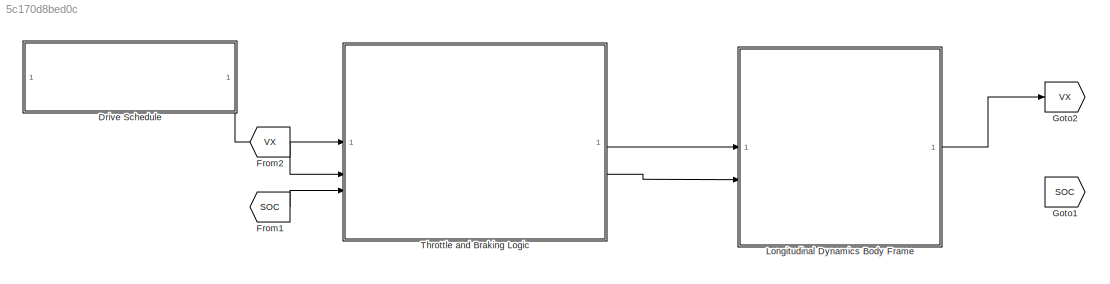
MODEL slx_5c170d8bed0c
KIND model
CONFIG AbsTol = auto
CONFIG EnableMultiTasking = off
CONFIG FixedStep = 0.001
CONFIG MaxStep = auto
CONFIG MinStep = auto
CONFIG RelTol = 1e-3
CONFIG SampleTimeConstraint = Unconstrained
CONFIG SolverName = ode5
CONFIG StartTime = 0.0
CONFIG StopTime = 765
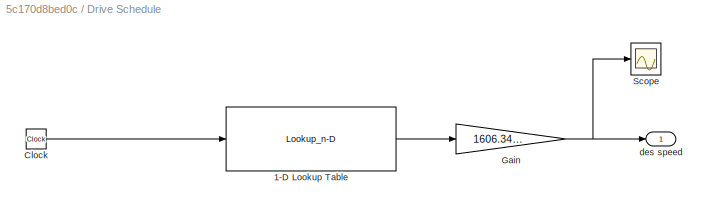
BLOCK [SubSystem] Drive Schedule
BLOCK [Lookup_n-D] Drive Schedule/1-D Lookup Table
  BreakpointsForDimension1 = Time
  InputPortMap = u0
  InternalRulePriority = Speed
  NumberOfTableDimensions = 1
  RndMeth = Simplest
  Table = DriveData
BLOCK [Clock] Drive Schedule/Clock
BLOCK [Gain] Drive Schedule/Gain
  Gain = 1606.344/3600
BLOCK [Scope] Drive Schedule/Scope
  ActiveDisplayYMaximum = 28.35
  ActiveDisplayYMinimum = -3.15
  DataLoggingVariableName = ScopeData4
  Floating = off
  GraphicalSettings = {"GraphicalSettings":{"LegacySettings":true,"Style":{"Style":{"AxesColor":"[0 0 0]","ChannelNames":[""],"ColorOrder":"[1 0.909803921568627 0.392156862745098;0.149019607843137 0.549019607843137 0.866666666666667;0.96078431372549 0.466666666666667 0.16078431372549;0.286274509803922 0.858823529411765 0.250980392156863;0.752941176470588 0.36078431372549 0.984313725490196;0.423529411764706 0.9568627450...<+432ch>
  MultipleDisplayCache = [{"MaxYLimMag":28.35,"MaxYLimReal":28.35,"MinYLimMag":0,"MinYLimReal":-3.15,"PlotAsMagnitudePhase":false,"ShowGrid":true,"ShowLegend":false,"Title":"%<SignalLabel>","YLabel":""}]
  NumInputPorts = 1
  WasSavedAsWebScope = on
  WindowPosition = [308 467 560 420]
BLOCK [Outport] Drive Schedule/des speed 
  VectorParamsAs1DForOutWhenUnconnected = off
BLOCK [From] From1
  GotoTag = SOC
BLOCK [From] From2
  GotoTag = VX
BLOCK [Goto] Goto1
  GotoTag = SOC
BLOCK [Goto] Goto2
  GotoTag = VX
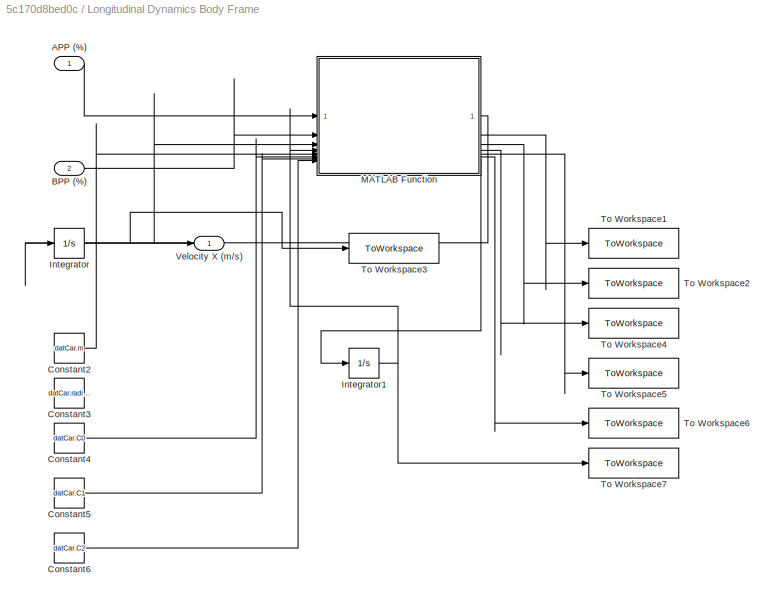
BLOCK [SubSystem] Longitudinal Dynamics Body Frame
BLOCK [Inport] Longitudinal Dynamics Body Frame/APP (%)
BLOCK [Inport] Longitudinal Dynamics Body Frame/BPP (%) 
  Port = 2
BLOCK [Constant] Longitudinal Dynamics Body Frame/Constant2
  Value = datCar.m
BLOCK [Constant] Longitudinal Dynamics Body Frame/Constant3
  Value = datCar.radius
BLOCK [Constant] Longitudinal Dynamics Body Frame/Constant4
  Value = datCar.C0
BLOCK [Constant] Longitudinal Dynamics Body Frame/Constant5
  Value = datCar.C1
BLOCK [Constant] Longitudinal Dynamics Body Frame/Constant6
  Value = datCar.C2
BLOCK [Integrator] Longitudinal Dynamics Body Frame/Integrator
  InitialCondition = datCar.init.vx0
BLOCK [Integrator] Longitudinal Dynamics Body Frame/Integrator1
  InitialCondition = datBat.SOC_init
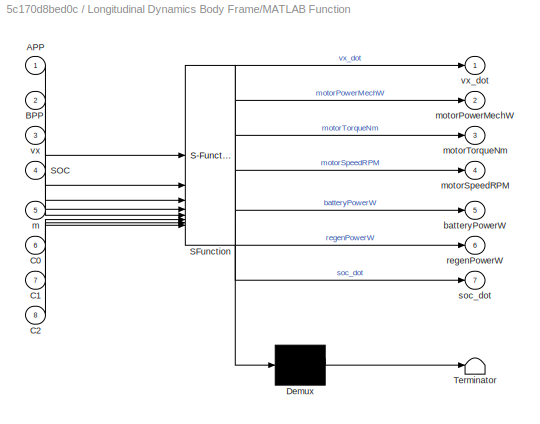
BLOCK [SubSystem] Longitudinal Dynamics Body Frame/MATLAB Function
  ErrorFcn = Stateflow.Translate.translate
  PermitHierarchicalResolution = ExplicitOnly
  SFBlockType = MATLAB Function
  TreatAsAtomicUnit = on
BLOCK [Demux] Longitudinal Dynamics Body Frame/MATLAB Function/ Demux 
  Outputs = 1
BLOCK [S-Function] Longitudinal Dynamics Body Frame/MATLAB Function/ SFunction 
  EnableBusSupport = off
  FunctionName = sf_sfun
  PortCounts = [8 8]
  SFcnIsStateOwnerBlock = off
  SFunctionDeploymentMode = off
  Tag = Stateflow S-Function 2
BLOCK [Terminator] Longitudinal Dynamics Body Frame/MATLAB Function/ Terminator 
BLOCK [Inport] Longitudinal Dynamics Body Frame/MATLAB Function/APP
BLOCK [Inport] Longitudinal Dynamics Body Frame/MATLAB Function/BPP
  Port = 2
BLOCK [Inport] Longitudinal Dynamics Body Frame/MATLAB Function/C0
  Port = 6
BLOCK [Inport] Longitudinal Dynamics Body Frame/MATLAB Function/C1
  Port = 7
BLOCK [Inport] Longitudinal Dynamics Body Frame/MATLAB Function/C2
  Port = 8
BLOCK [Inport] Longitudinal Dynamics Body Frame/MATLAB Function/SOC
  Port = 4
BLOCK [Outport] Longitudinal Dynamics Body Frame/MATLAB Function/batteryPowerW
  Port = 5
BLOCK [Inport] Longitudinal Dynamics Body Frame/MATLAB Function/m
  Port = 5
BLOCK [Outport] Longitudinal Dynamics Body Frame/MATLAB Function/motorPowerMechW
  Port = 2
BLOCK [Outport] Longitudinal Dynamics Body Frame/MATLAB Function/motorSpeedRPM
  Port = 4
BLOCK [Outport] Longitudinal Dynamics Body Frame/MATLAB Function/motorTorqueNm
  Port = 3
BLOCK [Outport] Longitudinal Dynamics Body Frame/MATLAB Function/regenPowerW
  Port = 6
BLOCK [Outport] Longitudinal Dynamics Body Frame/MATLAB Function/soc_dot
  Port = 7
BLOCK [Inport] Longitudinal Dynamics Body Frame/MATLAB Function/vx
  Port = 3
BLOCK [Outport] Longitudinal Dynamics Body Frame/MATLAB Function/vx_dot
BLOCK [ToWorkspace] Longitudinal Dynamics Body Frame/To Workspace1
  FixptAsFi = on
  MaxDataPoints = inf
  SampleTime = -1
  SaveFormat = Timeseries
  VariableName = motor_power_elec_W
BLOCK [ToWorkspace] Longitudinal Dynamics Body Frame/To Workspace2
  FixptAsFi = on
  MaxDataPoints = inf
  SampleTime = -1
  SaveFormat = Timeseries
  VariableName = motorTorqueW
BLOCK [ToWorkspace] Longitudinal Dynamics Body Frame/To Workspace3
  FixptAsFi = on
  MaxDataPoints = inf
  SampleTime = -1
  SaveFormat = Timeseries
  VariableName = veh_speed_dyn
BLOCK [ToWorkspace] Longitudinal Dynamics Body Frame/To Workspace4
  FixptAsFi = on
  MaxDataPoints = inf
  SampleTime = -1
  SaveFormat = Timeseries
  VariableName = motorSpeedRPM
BLOCK [ToWorkspace] Longitudinal Dynamics Body Frame/To Workspace5
  FixptAsFi = on
  MaxDataPoints = inf
  SampleTime = -1
  SaveFormat = Timeseries
  VariableName = battery_power_W
BLOCK [ToWorkspace] Longitudinal Dynamics Body Frame/To Workspace6
  FixptAsFi = on
  MaxDataPoints = inf
  SampleTime = -1
  SaveFormat = Timeseries
  VariableName = regen_power_W
BLOCK [ToWorkspace] Longitudinal Dynamics Body Frame/To Workspace7
  FixptAsFi = on
  MaxDataPoints = inf
  SampleTime = -1
  SaveFormat = Timeseries
  VariableName = SOC
BLOCK [Outport] Longitudinal Dynamics Body Frame/Velocity X (m//s)
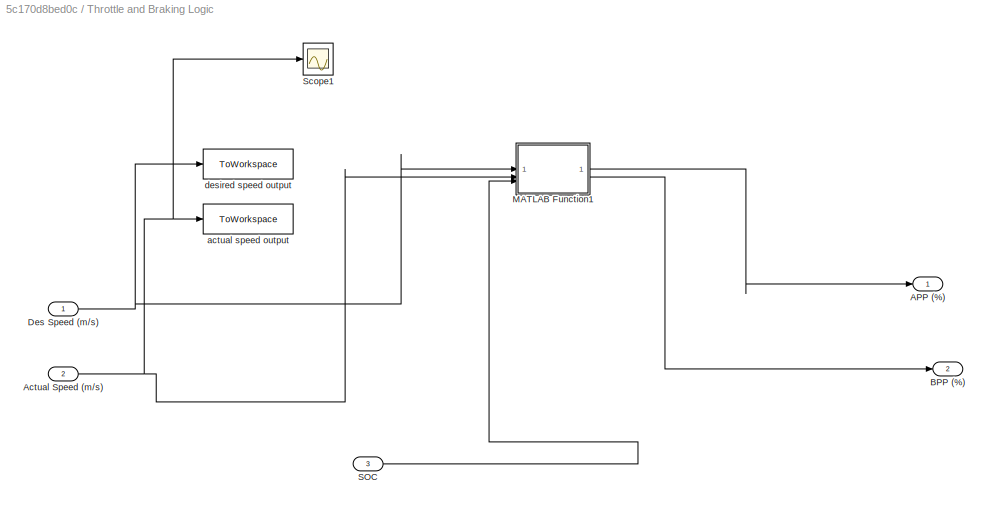
BLOCK [SubSystem] Throttle and Braking Logic 
BLOCK [Outport] Throttle and Braking Logic /APP (%)
BLOCK [Inport] Throttle and Braking Logic /Actual Speed (m//s)
  Port = 2
BLOCK [Outport] Throttle and Braking Logic /BPP (%)
  Port = 2
BLOCK [Inport] Throttle and Braking Logic /Des Speed (m//s) 
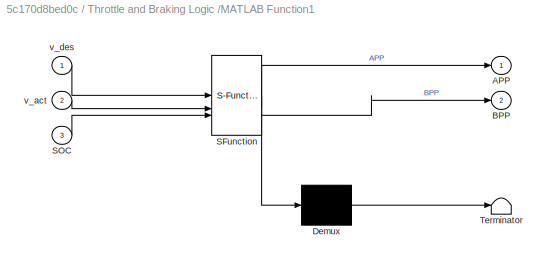
BLOCK [SubSystem] Throttle and Braking Logic /MATLAB Function1
  ErrorFcn = Stateflow.Translate.translate
  PermitHierarchicalResolution = ExplicitOnly
  SFBlockType = MATLAB Function
  TreatAsAtomicUnit = on
BLOCK [Demux] Throttle and Braking Logic /MATLAB Function1/ Demux 
  Outputs = 1
BLOCK [S-Function] Throttle and Braking Logic /MATLAB Function1/ SFunction 
  EnableBusSupport = off
  FunctionName = sf_sfun
  PortCounts = [3 3]
  SFcnIsStateOwnerBlock = off
  SFunctionDeploymentMode = off
  Tag = Stateflow S-Function 6
BLOCK [Terminator] Throttle and Braking Logic /MATLAB Function1/ Terminator 
BLOCK [Outport] Throttle and Braking Logic /MATLAB Function1/APP
BLOCK [Outport] Throttle and Braking Logic /MATLAB Function1/BPP
  Port = 2
BLOCK [Inport] Throttle and Braking Logic /MATLAB Function1/SOC
  Port = 3
BLOCK [Inport] Throttle and Braking Logic /MATLAB Function1/v_act
  Port = 2
BLOCK [Inport] Throttle and Braking Logic /MATLAB Function1/v_des
BLOCK [Inport] Throttle and Braking Logic /SOC
  Port = 3
BLOCK [Scope] Throttle and Braking Logic /Scope1
  ActiveDisplayYMaximum = 27.75461
  ActiveDisplayYMinimum = -3.08288
  DataLoggingVariableName = ScopeData1
  Floating = off
  GraphicalSettings = {"GraphicalSettings":{"LegacySettings":true,"Style":{"Style":{"AxesColor":"[0 0 0]","ChannelNames":[""],"ColorOrder":"[1 0.909803921568627 0.392156862745098;0.149019607843137 0.549019607843137 0.866666666666667;0.96078431372549 0.466666666666667 0.16078431372549;0.286274509803922 0.858823529411765 0.250980392156863;0.752941176470588 0.36078431372549 0.984313725490196;0.423529411764706 0.9568627450...<+432ch>
  MultipleDisplayCache = [{"MaxYLimMag":27.75461,"MaxYLimReal":27.75461,"MinYLimMag":0,"MinYLimReal":-3.08288,"PlotAsMagnitudePhase":false,"ShowGrid":true,"ShowLegend":false,"Title":"%<SignalLabel>","YLabel":""}]
  NumInputPorts = 1
  WasSavedAsWebScope = on
  WindowPosition = [192 86 1536 741]
BLOCK [ToWorkspace] Throttle and Braking Logic /actual speed output
  FixptAsFi = on
  MaxDataPoints = inf
  SampleTime = -1
  SaveFormat = Timeseries
  VariableName = veh_speed_ctrl
BLOCK [ToWorkspace] Throttle and Braking Logic /desired speed output
  FixptAsFi = on
  MaxDataPoints = inf
  SampleTime = -1
  SaveFormat = Timeseries
  VariableName = veh_speed_desd
LINE Drive Schedule/1-D Lookup Table:1 -> Drive Schedule/Gain:1
LINE Drive Schedule/Clock:1 -> Drive Schedule/1-D Lookup Table:1
NET Drive Schedule/Gain:1 -> Drive Schedule/Scope:1, Drive Schedule/des speed :1
LINE Drive Schedule:1 -> Throttle and Braking Logic :1
LINE From1:1 -> Throttle and Braking Logic :3
LINE From2:1 -> Throttle and Braking Logic :2
LINE Longitudinal Dynamics Body Frame/APP (%):1 -> Longitudinal Dynamics Body Frame/MATLAB Function:1
LINE Longitudinal Dynamics Body Frame/BPP (%) :1 -> Longitudinal Dynamics Body Frame/MATLAB Function:2
LINE Longitudinal Dynamics Body Frame/Constant2:1 -> Longitudinal Dynamics Body Frame/MATLAB Function:5
LINE Longitudinal Dynamics Body Frame/Constant4:1 -> Longitudinal Dynamics Body Frame/MATLAB Function:6
LINE Longitudinal Dynamics Body Frame/Constant5:1 -> Longitudinal Dynamics Body Frame/MATLAB Function:7
LINE Longitudinal Dynamics Body Frame/Constant6:1 -> Longitudinal Dynamics Body Frame/MATLAB Function:8
NET Longitudinal Dynamics Body Frame/Integrator1:1 -> Longitudinal Dynamics Body Frame/MATLAB Function:4, Longitudinal Dynamics Body Frame/To Workspace7:1
NET Longitudinal Dynamics Body Frame/Integrator:1 -> Longitudinal Dynamics Body Frame/MATLAB Function:3, Longitudinal Dynamics Body Frame/To Workspace3:1, Longitudinal Dynamics Body Frame/Velocity X (m//s):1
LINE Longitudinal Dynamics Body Frame/MATLAB Function:1 -> Longitudinal Dynamics Body Frame/Integrator:1
LINE Longitudinal Dynamics Body Frame/MATLAB Function:2 -> Longitudinal Dynamics Body Frame/To Workspace1:1
LINE Longitudinal Dynamics Body Frame/MATLAB Function:3 -> Longitudinal Dynamics Body Frame/To Workspace2:1
LINE Longitudinal Dynamics Body Frame/MATLAB Function:4 -> Longitudinal Dynamics Body Frame/To Workspace4:1
LINE Longitudinal Dynamics Body Frame/MATLAB Function:5 -> Longitudinal Dynamics Body Frame/To Workspace5:1
LINE Longitudinal Dynamics Body Frame/MATLAB Function:6 -> Longitudinal Dynamics Body Frame/To Workspace6:1
LINE Longitudinal Dynamics Body Frame/MATLAB Function:7 -> Longitudinal Dynamics Body Frame/Integrator1:1
LINE Longitudinal Dynamics Body Frame:1 -> Goto2:1
NET Throttle and Braking Logic /Actual Speed (m//s):1 -> Throttle and Braking Logic /MATLAB Function1:2, Throttle and Braking Logic /Scope1:1, Throttle and Braking Logic /actual speed output:1
NET Throttle and Braking Logic /Des Speed (m//s) :1 -> Throttle and Braking Logic /MATLAB Function1:1, Throttle and Braking Logic /desired speed output:1
LINE Throttle and Braking Logic /MATLAB Function1:1 -> Throttle and Braking Logic /APP (%):1
LINE Throttle and Braking Logic /MATLAB Function1:2 -> Throttle and Braking Logic /BPP (%):1
LINE Throttle and Braking Logic /SOC:1 -> Throttle and Braking Logic /MATLAB Function1:3
LINE Throttle and Braking Logic :1 -> Longitudinal Dynamics Body Frame:1
LINE Throttle and Braking Logic :2 -> Longitudinal Dynamics Body Frame:2
note: NET lines group one-source signal fan-out (src -> all destinations, sorted); 1:1 wires keep LINE
CHART Longitudinal Dynamics Body Frame/MATLAB Function states=1 transitions=1
  STATE_LABEL 'eML_blk_kernel()'
  STATE_LABEL 'SCRIPT:\nfunction [vx_dot, motorPowerMechW, motorTorqueNm, motorSpeedRPM, batteryPowerW, regenPowerW, soc_dot] = ...\n    fcn(APP, BPP, vx, SOC, m, C0, C1, C2)\n\n% Constants\nr_w = 0.3;                % wheel radius\ngearRatio = 10.0;         % single speed ratio\nFDRatio = 7.5;\nFDeta = 0.95;\n\neta_drive = 0.92;\neta_regen = 0.70;\n\nmaxBrakeTorque = 50000;   % Nm\nmaxMotorTorque = 210;     % pick based on y...<+1859ch>'
CHART Throttle and Braking Logic
/MATLAB Function1 states=1 transitions=1
  STATE_LABEL 'eML_blk_kernel()'
  STATE_LABEL 'SCRIPT:\nfunction [APP,BPP] = fcn(v_des,v_act,SOC)\n%#codegen\n\ne = v_des - v_act;\n\nKp_throttle = 15;\nKp_brake = 20;\n\nAPP = 0;\nBPP = 0;\n\nif e >= 0\n    APP = Kp_throttle * e;\n    BPP = 0;\nelse\n    APP = 0;\n    BPP = Kp_brake * (-e);\nend\n\nAPP = min(max(APP,0),100);\nBPP = min(max(BPP,0),100);'
CHART  states=0 transitions=0
CHART  states=0 transitions=0
